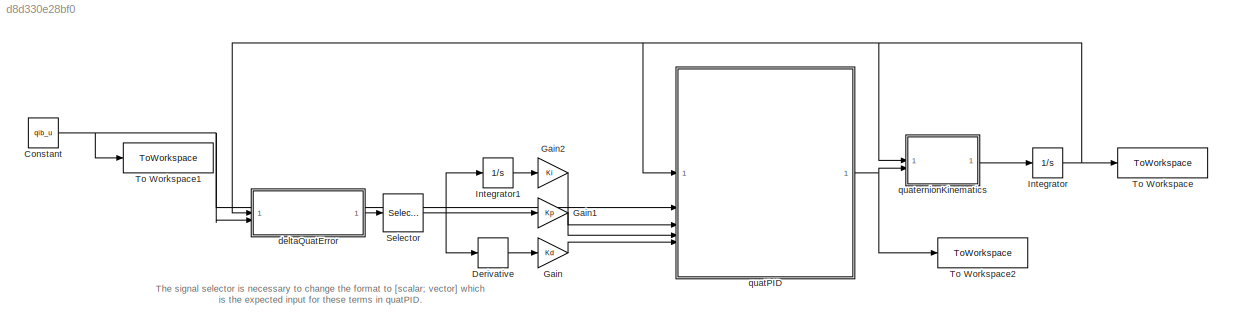
MODEL slx_d8d330e28bf0
KIND model
CONFIG AbsTol = auto
CONFIG EnableMultiTasking = off
CONFIG FixedStep = dt_sim
CONFIG MaxStep = auto
CONFIG MinStep = auto
CONFIG RelTol = 1e-3
CONFIG SampleTimeConstraint = Unconstrained
CONFIG SolverName = FixedStepAuto
CONFIG StartTime = 0.0
CONFIG StopTime = tspan
BLOCK [Constant] Constant
  Value = qib_u
BLOCK [Derivative] Derivative
BLOCK [Gain] Gain
  Gain = Kd
BLOCK [Gain] Gain1
  Gain = Kp
BLOCK [Gain] Gain2
  Gain = Ki
BLOCK [Integrator] Integrator
  InitialCondition = qib_0
BLOCK [Integrator] Integrator1
BLOCK [Selector] Selector
  IndexOptions = Index vector (dialog)
  Indices = [4 1 2 3]
  InputPortWidth = 4
  OutputSizes = 1
BLOCK [ToWorkspace] To Workspace
  FixptAsFi = on
  MaxDataPoints = inf
  SampleTime = dt_data
  SaveFormat = Timeseries
  VariableName = qib
BLOCK [ToWorkspace] To Workspace1
  FixptAsFi = on
  MaxDataPoints = inf
  SampleTime = dt_data
  SaveFormat = Timeseries
  VariableName = qib_u
BLOCK [ToWorkspace] To Workspace2
  FixptAsFi = on
  MaxDataPoints = inf
  SampleTime = dt_data
  SaveFormat = Timeseries
  VariableName = wb_u
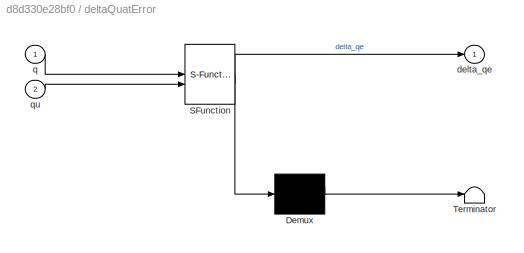
BLOCK [SubSystem] deltaQuatError
  ErrorFcn = Stateflow.Translate.translate
  PermitHierarchicalResolution = ExplicitOnly
  SFBlockType = MATLAB Function
  TreatAsAtomicUnit = on
BLOCK [Demux] deltaQuatError/ Demux 
  Outputs = 1
BLOCK [S-Function] deltaQuatError/ SFunction 
  EnableBusSupport = off
  FunctionName = sf_sfun
  PortCounts = [2 2]
  SFcnIsStateOwnerBlock = off
  SFunctionDeploymentMode = off
  Tag = Stateflow S-Function 1
BLOCK [Terminator] deltaQuatError/ Terminator 
BLOCK [Outport] deltaQuatError/delta_qe
BLOCK [Inport] deltaQuatError/q
BLOCK [Inport] deltaQuatError/qu
  Port = 2
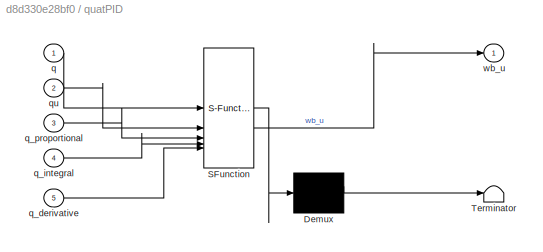
BLOCK [SubSystem] quatPID
  ErrorFcn = Stateflow.Translate.translate
  PermitHierarchicalResolution = ExplicitOnly
  SFBlockType = MATLAB Function
  TreatAsAtomicUnit = on
BLOCK [Demux] quatPID/ Demux 
  Outputs = 1
BLOCK [S-Function] quatPID/ SFunction 
  EnableBusSupport = off
  FunctionName = sf_sfun
  PortCounts = [5 2]
  SFcnIsStateOwnerBlock = off
  SFunctionDeploymentMode = off
  Tag = Stateflow S-Function 2
BLOCK [Terminator] quatPID/ Terminator 
BLOCK [Inport] quatPID/q
BLOCK [Inport] quatPID/q_derivative
  Port = 5
BLOCK [Inport] quatPID/q_integral
  Port = 4
BLOCK [Inport] quatPID/q_proportional
  Port = 3
BLOCK [Inport] quatPID/qu
  Port = 2
BLOCK [Outport] quatPID/wb_u
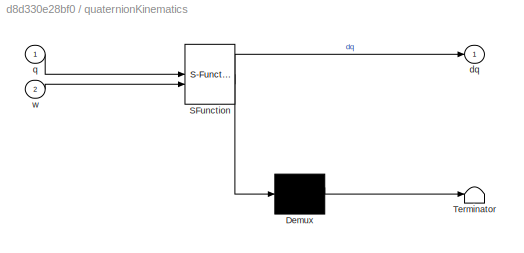
BLOCK [SubSystem] quaternionKinematics
  ErrorFcn = Stateflow.Translate.translate
  PermitHierarchicalResolution = ExplicitOnly
  SFBlockType = MATLAB Function
  TreatAsAtomicUnit = on
BLOCK [Demux] quaternionKinematics/ Demux 
  Outputs = 1
BLOCK [S-Function] quaternionKinematics/ SFunction 
  EnableBusSupport = off
  FunctionName = sf_sfun
  PortCounts = [2 2]
  SFcnIsStateOwnerBlock = off
  SFunctionDeploymentMode = off
  Tag = Stateflow S-Function 7
BLOCK [Terminator] quaternionKinematics/ Terminator 
BLOCK [Outport] quaternionKinematics/dq
BLOCK [Inport] quaternionKinematics/q
BLOCK [Inport] quaternionKinematics/w
  Port = 2
ANNOTATION (root): The signal selector is necessary to change the format to [scalar; vector] which is the expected input for these terms in quatPID.
NET Constant:1 -> To Workspace1:1, deltaQuatError:2, quatPID:2
LINE Derivative:1 -> Gain:1
LINE Gain1:1 -> quatPID:4
LINE Gain2:1 -> quatPID:3
LINE Gain:1 -> quatPID:5
LINE Integrator1:1 -> Gain2:1
NET Integrator:1 -> To Workspace:1, deltaQuatError:1, quatPID:1, quaternionKinematics:1
NET Selector:1 -> Derivative:1, Gain1:1, Integrator1:1
LINE deltaQuatError:1 -> Selector:1
NET quatPID:1 -> To Workspace2:1, quaternionKinematics:2
LINE quaternionKinematics:1 -> Integrator:1
note: NET lines group one-source signal fan-out (src -> all destinations, sorted); 1:1 wires keep LINE
CHART deltaQuatError states=1 transitions=1
  STATE_LABEL 'eML_blk_kernel()'
  STATE_LABEL 'SCRIPT:\nfunction delta_qe = fcn(q, qu)\n\ndelta_qe = deltaQuatError(q, qu);\n'
CHART quatPID states=1 transitions=1
  STATE_LABEL 'eML_blk_kernel()'
  STATE_LABEL 'SCRIPT:\nfunction wb_u = fcn(q, qu, q_proportional, q_integral, q_derivative)\n\nwb_u = quatPID(q, qu, q_proportional, q_integral, q_derivative);\n'
CHART quaternionKinematics states=1 transitions=1
  STATE_LABEL 'eML_blk_kernel()'
  STATE_LABEL 'SCRIPT:\nfunction dq = fcn(q,w)\n\n%Expects q as [vector; scalar]\ndq = quaternionKinematics(q,w);\n'
CHART  states=0 transitions=0
CHART  states=0 transitions=0
CHART  states=0 transitions=0
